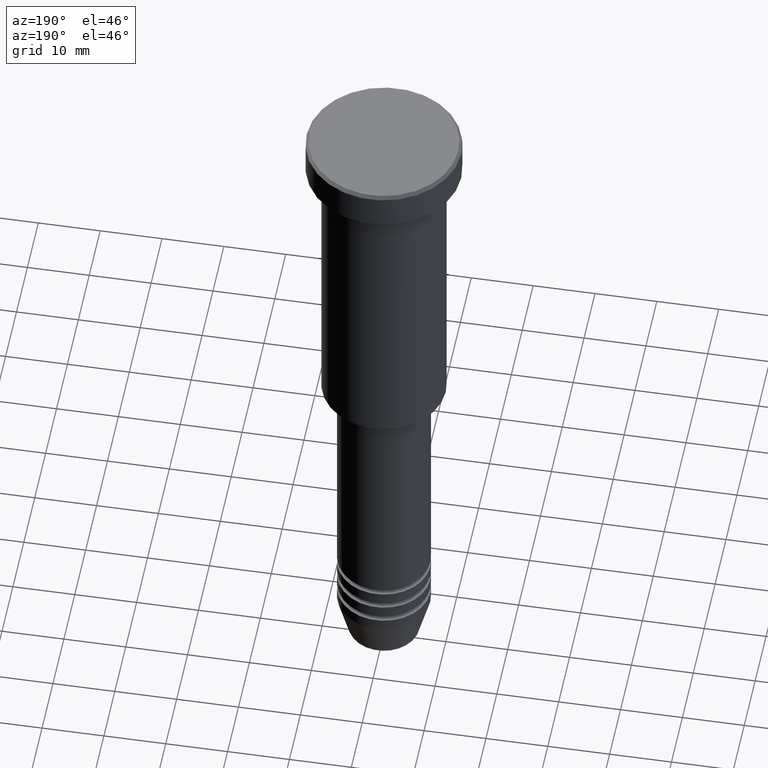
[diagram: clean part render]
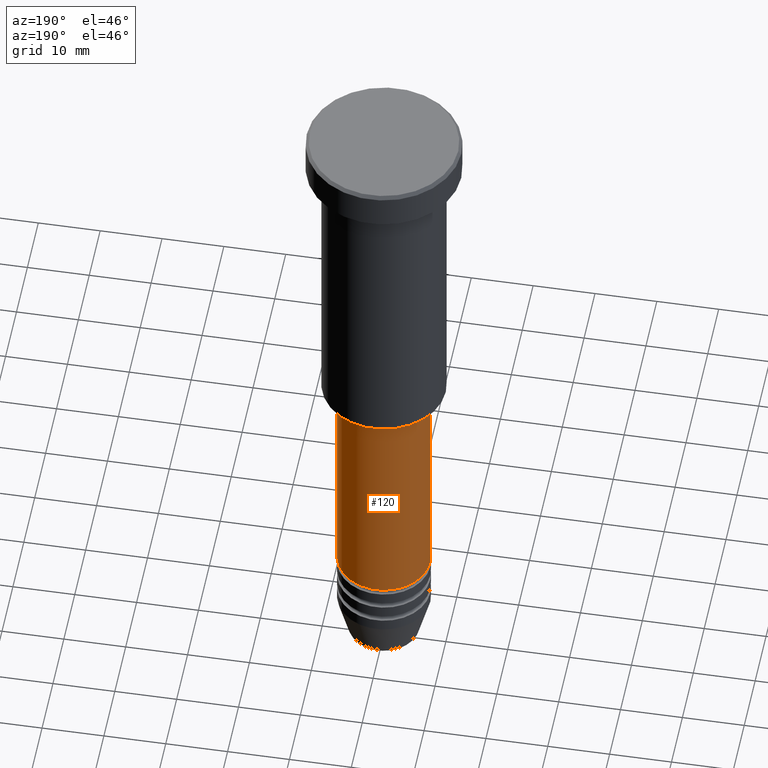
[diagram: same view with one face highlighted and labeled with its STEP entity id]
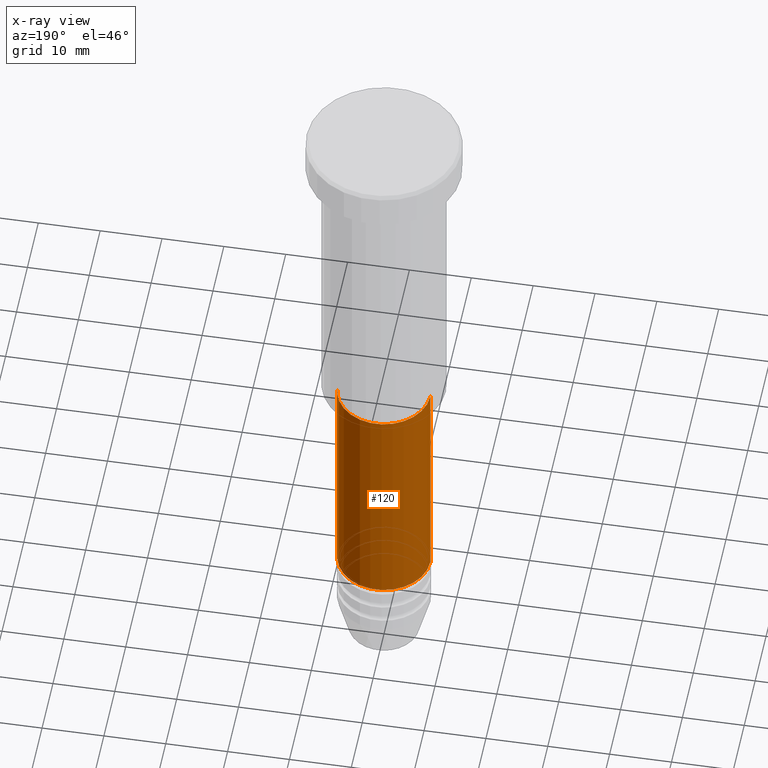
[diagram: x-ray of the same camera — body ghosted, the highlighted face saturated]
A machine part, auxiliary view. The second image highlights one B-rep face of the part: STEP entity #120.
The next image is the same camera in x-ray: the body ghosted, the highlighted face saturated — about 0% of this face is hidden behind the body in this view.
In plain terms, the highlighted cylindrical surface (partial cylindrical patch) has radius 7.5 mm, axis along (-0, -0, 1).
Its self-contained STEP definition (entity closure, byte-faithful):
#82 = CARTESIAN_POINT ( 'NONE',  ( -7.500000000000000000, 9.184850993605147944E-16, -94.99999999999997158 ) ) ;
#112 = DIRECTION ( 'NONE',  ( -0.000000000000000000, -0.000000000000000000, 1.000000000000000000 ) ) ;
#119 = DIRECTION ( 'NONE',  ( -0.000000000000000000, -0.000000000000000000, 1.000000000000000000 ) ) ;
#120 = ADVANCED_FACE ( 'NONE', ( #371 ), #440, .T. ) ;
#198 = CARTESIAN_POINT ( 'NONE',  ( 0.000000000000000000, 0.000000000000000000, -94.99999999999997158 ) ) ;
#240 = EDGE_CURVE ( 'NONE', #652, #635, #883, .T. ) ;
#371 = FACE_OUTER_BOUND ( 'NONE', #707, .T. ) ;
#397 = VECTOR ( 'NONE', #714, 1000.000000000000000 ) ;
#439 = CARTESIAN_POINT ( 'NONE',  ( 7.500000000000000000, 0.000000000000000000, -57.00000000000000000 ) ) ;
#440 = CYLINDRICAL_SURFACE ( 'NONE', #476, 7.500000000000000000 ) ;
#457 = AXIS2_PLACEMENT_3D ( 'NONE', #932, #119, #482 ) ;
#476 = AXIS2_PLACEMENT_3D ( 'NONE', #525, #807, #729 ) ;
#482 = DIRECTION ( 'NONE',  ( 1.000000000000000000, 0.000000000000000000, 0.000000000000000000 ) ) ;
#488 = ORIENTED_EDGE ( 'NONE', *, *, #591, .F. ) ;
#525 = CARTESIAN_POINT ( 'NONE',  ( 0.000000000000000000, 0.000000000000000000, 0.000000000000000000 ) ) ;
#591 = EDGE_CURVE ( 'NONE', #635, #596, #967, .T. ) ;
#596 = VERTEX_POINT ( 'NONE', #1042 ) ;
#602 = ORIENTED_EDGE ( 'NONE', *, *, #713, .T. ) ;
#620 = AXIS2_PLACEMENT_3D ( 'NONE', #198, #847, #827 ) ;
#635 = VERTEX_POINT ( 'NONE', #439 ) ;
#652 = VERTEX_POINT ( 'NONE', #1024 ) ;
#695 = CIRCLE ( 'NONE', #620, 7.500000000000000000 ) ;
#707 = EDGE_LOOP ( 'NONE', ( #602, #946, #488, #916 ) ) ;
#713 = EDGE_CURVE ( 'NONE', #652, #1037, #695, .T. ) ;
#714 = DIRECTION ( 'NONE',  ( -0.000000000000000000, -0.000000000000000000, 1.000000000000000000 ) ) ;
#729 = DIRECTION ( 'NONE',  ( 1.000000000000000000, 0.000000000000000000, 0.000000000000000000 ) ) ;
#806 = EDGE_CURVE ( 'NONE', #1037, #596, #1015, .T. ) ;
#807 = DIRECTION ( 'NONE',  ( -0.000000000000000000, -0.000000000000000000, 1.000000000000000000 ) ) ;
#821 = CARTESIAN_POINT ( 'NONE',  ( 7.500000000000000000, 0.000000000000000000, 0.000000000000000000 ) ) ;
#827 = DIRECTION ( 'NONE',  ( 1.000000000000000000, 0.000000000000000000, 0.000000000000000000 ) ) ;
#847 = DIRECTION ( 'NONE',  ( -0.000000000000000000, -0.000000000000000000, 1.000000000000000000 ) ) ;
#883 = LINE ( 'NONE', #821, #397 ) ;
#916 = ORIENTED_EDGE ( 'NONE', *, *, #240, .F. ) ;
#926 = CARTESIAN_POINT ( 'NONE',  ( -7.500000000000000000, 9.184850993605147944E-16, 0.000000000000000000 ) ) ;
#932 = CARTESIAN_POINT ( 'NONE',  ( 0.000000000000000000, 0.000000000000000000, -57.00000000000000000 ) ) ;
#946 = ORIENTED_EDGE ( 'NONE', *, *, #806, .T. ) ;
#967 = CIRCLE ( 'NONE', #457, 7.500000000000000000 ) ;
#1013 = VECTOR ( 'NONE', #112, 1000.000000000000000 ) ;
#1015 = LINE ( 'NONE', #926, #1013 ) ;
#1024 = CARTESIAN_POINT ( 'NONE',  ( 7.500000000000000000, 0.000000000000000000, -94.99999999999997158 ) ) ;
#1037 = VERTEX_POINT ( 'NONE', #82 ) ;
#1042 = CARTESIAN_POINT ( 'NONE',  ( -7.500000000000000000, 9.184850993605147944E-16, -57.00000000000000000 ) ) ;